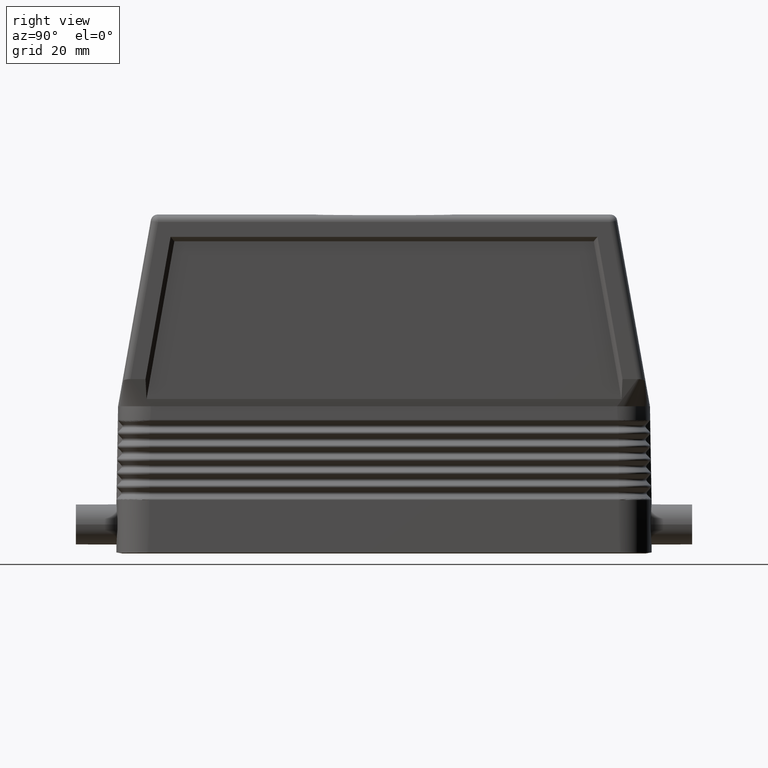
[diagram: clean part render]
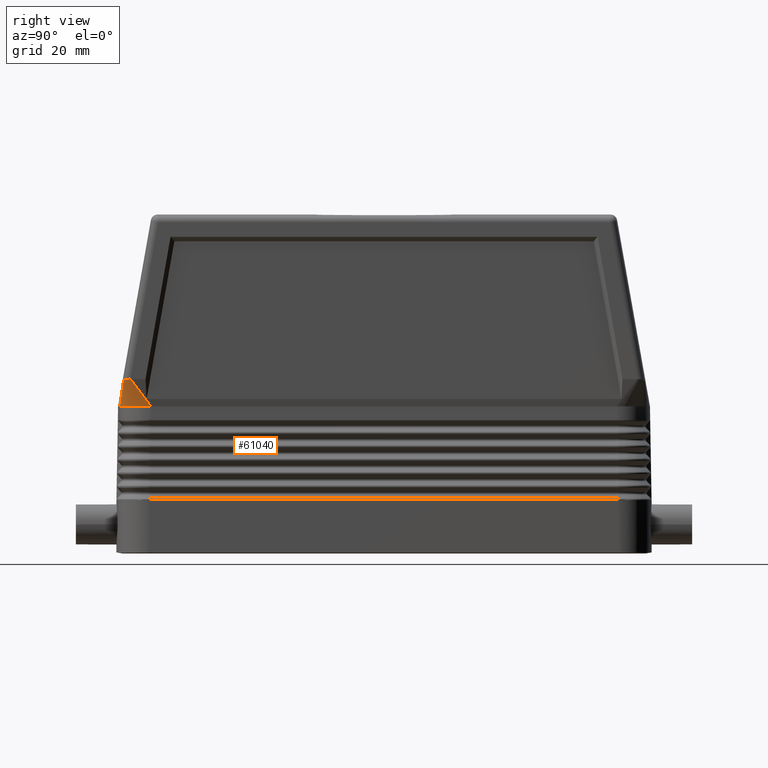
[diagram: same view with one face highlighted and labeled with its STEP entity id]
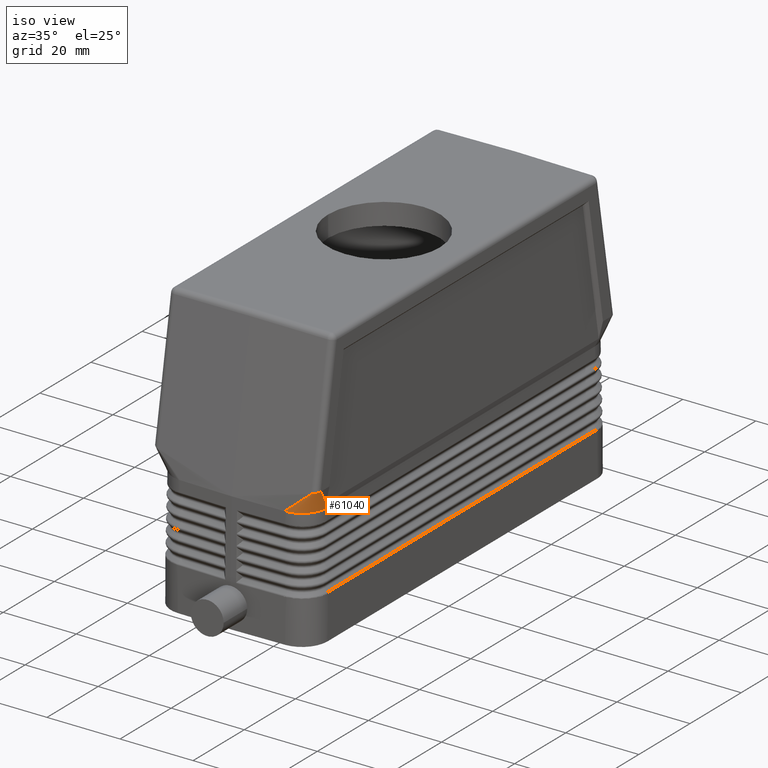
[diagram: same view with one face highlighted and labeled with its STEP entity id]
A machine part, right view. The second image highlights one B-rep face of the part: STEP entity #61040.
A second angle (iso view) of the same face is appended — the face is thin or edge-on in the first view.
In plain terms, the highlighted face is a freeform B-spline surface patch.
Its self-contained STEP definition (entity closure, byte-faithful):
#5660=CARTESIAN_POINT('',(409.900262758304,-28.8520722104411,
33.232629009636));
#5670=VERTEX_POINT('',#5660);
#6230=CARTESIAN_POINT('',(409.714891690159,-21.8534601219985,
33.232629009636));
#6240=DIRECTION('',(0.,0.,1.));
#6250=DIRECTION('',(0.716303372526395,-0.697788992824702,0.));
#6260=AXIS2_PLACEMENT_3D('',#6230,#6240,#6250);
#6270=ELLIPSE('',#6260,7.00207803343886,7.);
#6280=CARTESIAN_POINT('',(410.478839074744,-28.8128934100911,
33.232629009636));
#6290=VERTEX_POINT('',#6280);
#6300=EDGE_CURVE('',#5670,#6290,#6270,.T.);
#6320=CARTESIAN_POINT('',(416.715957986466,-21.8555374350302,
33.2326290096361));
#6330=VERTEX_POINT('',#6320);
#6340=EDGE_CURVE('',#6290,#6330,#6270,.T.);
#58530=CARTESIAN_POINT('',(409.900262758304,-28.8520722104411,
33.232629009636));
#58540=CARTESIAN_POINT('',(416.595604153207,-28.0350060476496,
38.9377402412396));
#58550=B_SPLINE_CURVE_WITH_KNOTS('',1,(#58530,#58540),.UNSPECIFIED.,.F.,
.F.,(2,2),(1.,6.94499600036342),.UNSPECIFIED.);
#58560=CARTESIAN_POINT('',(416.595604153207,-28.0350060476496,
38.9377402412399));
#58570=VERTEX_POINT('',#58560);
#58580=EDGE_CURVE('',#5670,#58570,#58550,.T.);
#59460=CARTESIAN_POINT('',(416.715957986466,-21.8555374350301,
33.232629009636));
#59470=CARTESIAN_POINT('',(418.082514349959,-26.4416725678366,
39.336156627677));
#59480=B_SPLINE_CURVE_WITH_KNOTS('',1,(#59460,#59470),.UNSPECIFIED.,.F.,
.F.,(2,2),(1.,6.94499600036342),.UNSPECIFIED.);
#59490=CARTESIAN_POINT('',(418.082514349959,-26.4416725678366,
39.3361566276771));
#59500=VERTEX_POINT('',#59490);
#59510=EDGE_CURVE('',#6330,#59500,#59480,.T.);
#59690=CARTESIAN_POINT('',(409.90025494965,-28.8520731633705,
33.2326223558689));
#59700=CARTESIAN_POINT('',(410.805560319792,-28.8283633034306,
33.2326222745268));
#59710=CARTESIAN_POINT('',(411.697637895332,-28.629233096965,
33.2326221947761));
#59720=CARTESIAN_POINT('',(412.531873940709,-28.2635784277251,
33.2326221240451));
#59730=CARTESIAN_POINT('',(412.536734368502,-28.2614414866798,
33.2326221236342));
#59740=CARTESIAN_POINT('',(412.725518057767,-28.1781829046532,
33.2326221077169));
#59750=CARTESIAN_POINT('',(412.923205945544,-28.0815340699752,
33.232622092791));
#59760=CARTESIAN_POINT('',(413.341986964652,-27.8476634801414,
33.2326220638431));
#59770=CARTESIAN_POINT('',(413.532425596572,-27.7268175427815,
33.2326220498558));
#59780=CARTESIAN_POINT('',(414.006887019487,-27.3983161420754,
33.2326220126631));
#59790=CARTESIAN_POINT('',(414.365711165005,-27.1139003053306,
33.2326219911466));
#59800=CARTESIAN_POINT('',(414.862312869799,-26.6041224104709,
33.2326219657045));
#59810=CARTESIAN_POINT('',(414.988386947919,-26.4637427084227,
33.2326219593206));
#59820=CARTESIAN_POINT('',(415.275329321974,-26.1171083415925,
33.2326219449927));
#59830=CARTESIAN_POINT('',(415.430621584105,-25.9064935507801,
33.2326219374691));
#59840=CARTESIAN_POINT('',(415.776799257419,-25.3774227035438,
33.2326219212617));
#59850=CARTESIAN_POINT('',(416.001762565177,-24.9797567241877,
33.2326219134179));
#59860=CARTESIAN_POINT('',(416.54024980092,-23.6581333789567,
33.2326218966575));
#59870=CARTESIAN_POINT('',(416.715956392677,-22.7611480301257,
33.2326218912031));
#59880=CARTESIAN_POINT('',(416.715956392677,-21.8555320863044,
33.2326218912031));
#59890=CARTESIAN_POINT('',(417.097914645381,-27.973706573558,
39.365759824056));
#59900=CARTESIAN_POINT('',(417.309814430227,-27.9597852335499,
39.4407371661843));
#59910=CARTESIAN_POINT('',(417.517231876746,-27.8853840438617,
39.5142475566613));
#59920=CARTESIAN_POINT('',(417.697961195356,-27.7577594396574,
39.5794441210372));
#59930=CARTESIAN_POINT('',(417.699010207976,-27.7570159601729,
39.5798229102165));
#59940=CARTESIAN_POINT('',(417.73960274513,-27.7281415877352,
39.5944946852924));
#59950=CARTESIAN_POINT('',(417.776116952423,-27.698279995694,
39.6082526723283));
#59960=CARTESIAN_POINT('',(417.844280116777,-27.6351987154402,
39.6349355118849));
#59970=CARTESIAN_POINT('',(417.878109428005,-27.6006060946613,
39.6478283544831));
#59980=CARTESIAN_POINT('',(417.970457317021,-27.4954261644383,
39.6821107910221));
#59990=CARTESIAN_POINT('',(418.017554344673,-27.424765935327,
39.7019436887721));
#60000=CARTESIAN_POINT('',(418.067818990986,-27.3283155075595,
39.725395029982));
#60010=CARTESIAN_POINT('',(418.080321305252,-27.3021881680281,
39.7312794277877));
#60020=CARTESIAN_POINT('',(418.108082139941,-27.2385931119722,
39.7444861997457));
#60030=CARTESIAN_POINT('',(418.122313183132,-27.2010433856452,
39.7514211695917));
#60040=CARTESIAN_POINT('',(418.152095399417,-27.1091968302451,
39.7663603506944));
#60050=CARTESIAN_POINT('',(418.162200770455,-27.0598214299508,
39.7735904167469));
#60060=CARTESIAN_POINT('',(418.179457517312,-26.9385929061246,
39.7890393238995));
#60070=CARTESIAN_POINT('',(418.185038711159,-26.8620336497563,
39.7940669538265));
#60080=CARTESIAN_POINT('',(418.185038711159,-26.7857422216252,
39.7940669538264));
#60090=B_SPLINE_SURFACE_WITH_KNOTS('',3,1,((#59690,#59890),(#59700,
#59900),(#59710,#59910),(#59720,#59920),(#59730,#59930),(#59740,#59940),
(#59750,#59950),(#59760,#59960),(#59770,#59970),(#59780,#59980),(#59790,
#59990),(#59800,#60000),(#59810,#60010),(#59820,#60020),(#59830,#60030),
(#59840,#60040),(#59850,#60050),(#59860,#60060),(#59870,#60070),(#59880,
#60080)),.UNSPECIFIED.,.F.,.F.,.F.,(4,2,2,2,2,2,2,2,2,4),(2,2),(0.,
3.81331004196677,3.83561227417694,4.67783221396416,5.54251648225474,
7.10620179287715,7.67122454835388,8.45633838454976,9.571183179988,
11.5068368225308),(0.999993066459616,7.39101266938558),.UNSPECIFIED.);
#60100=ORIENTED_EDGE('',*,*,#59510,.T.);
#60110=ORIENTED_EDGE('',*,*,#6340,.T.);
#60120=ORIENTED_EDGE('',*,*,#6300,.T.);
#60130=ORIENTED_EDGE('',*,*,#58580,.F.);
#60140=CARTESIAN_POINT('',(416.582514349959,-31.2207557592742,
12.232629009636));
#60150=DIRECTION('',(0.,0.17364817766693,0.984807753012208));
#60160=DIRECTION('',(0.,-0.984807753012208,0.17364817766693));
#60170=AXIS2_PLACEMENT_3D('',#60140,#60150,#60160);
#60180=CYLINDRICAL_SURFACE('',#60170,1.5);
#60190=CARTESIAN_POINT('',(418.082514349959,-26.4416725678366,
39.3361566276771));
#60200=CARTESIAN_POINT('',(418.082514349959,-26.4670059296482,
39.3361566276771));
#60210=CARTESIAN_POINT('',(418.081891564679,-26.492378889169,
39.3359892131085));
#60220=CARTESIAN_POINT('',(418.080646656502,-26.517745759732,
39.3356553443403));
#60230=CARTESIAN_POINT('',(418.079401750877,-26.5431125782918,
39.3353214762566));
#60240=CARTESIAN_POINT('',(418.077534717677,-26.5684729668416,
39.3348210901075));
#60250=CARTESIAN_POINT('',(418.075050777559,-26.5937799226522,
39.3341556089971));
#60260=CARTESIAN_POINT('',(418.072566839436,-26.6190868581305,
39.3334901284215));
#60270=CARTESIAN_POINT('',(418.069466021997,-26.6443400035072,
39.3326595387857));
#60280=CARTESIAN_POINT('',(418.065758258833,-26.6694922489418,
39.3316663536195));
#60290=CARTESIAN_POINT('',(418.062050493975,-26.6946445058662,
39.3306731679997));
#60300=CARTESIAN_POINT('',(418.057735840371,-26.7196955087048,
39.3295173949601));
#60310=CARTESIAN_POINT('',(418.052828823326,-26.7445992143043,
39.3282028081339));
#60320=CARTESIAN_POINT('',(418.047921797814,-26.7695029628781,
39.3268882190393));
#60330=CARTESIAN_POINT('',(418.042422491944,-26.7942590753236,
39.3254148373544));
#60340=CARTESIAN_POINT('',(418.036349650468,-26.8188236921833,
39.3237876542149));
#60350=CARTESIAN_POINT('',(418.030278216236,-26.8433826167475,
39.3221608481383));
#60360=CARTESIAN_POINT('',(418.023631967675,-26.867761871376,
39.3203799001924));
#60370=CARTESIAN_POINT('',(418.016404492778,-26.8919977664093,
39.3184431385141));
#60380=CARTESIAN_POINT('',(418.009178857279,-26.9162274933884,
39.3165068697432));
#60390=CARTESIAN_POINT('',(418.001379127829,-26.9402865347609,
39.3144167012897));
#60400=CARTESIAN_POINT('',(417.993022301566,-26.964133889426,
39.3121772739792));
#60410=CARTESIAN_POINT('',(417.984665473757,-26.9879812485037,
39.3099378462544));
#60420=CARTESIAN_POINT('',(417.975751648403,-27.0116166409925,
39.3075491900971));
#60430=CARTESIAN_POINT('',(417.966301551948,-27.0350006156569,
39.3050169346702));
#60440=CARTESIAN_POINT('',(417.947410612666,-27.0817456671666,
39.2999549034262));
#60450=CARTESIAN_POINT('',(417.926338795131,-27.1275769210499,
39.2943090483304));
#60460=CARTESIAN_POINT('',(417.903217661655,-27.1722704275549,
39.2881140700872));
#60470=CARTESIAN_POINT('',(417.880104428284,-27.2169486630354,
39.2819212085646));
#60480=CARTESIAN_POINT('',(417.854948297967,-27.2604838636384,
39.2751801457143));
#60490=CARTESIAN_POINT('',(417.827874519864,-27.3027107428501,
39.2679255774266));
#60500=CARTESIAN_POINT('',(417.814343845525,-27.3238144893908,
39.2642999585491));
#60510=CARTESIAN_POINT('',(417.80032275561,-27.3446095029246,
39.2605430245059));
#60520=CARTESIAN_POINT('',(417.785827045856,-27.3650717481877,
39.2566589975771));
#60530=CARTESIAN_POINT('',(417.771331865431,-27.3855332462465,
39.2527751124783));
#60540=CARTESIAN_POINT('',(417.756364307104,-27.4056585743148,
39.2487647297407));
#60550=CARTESIAN_POINT('',(417.74094923847,-27.425415850522,
39.2446344453534));
#60560=CARTESIAN_POINT('',(417.725534174139,-27.4451731212143,
39.240504162119));
#60570=CARTESIAN_POINT('',(417.709671744938,-27.4645621499707,
39.2362540130505));
#60580=CARTESIAN_POINT('',(417.693389570641,-27.4835530998997,
39.2318913384674));
#60590=CARTESIAN_POINT('',(417.67710738658,-27.5025440612176,
39.2275286612681));
#60600=CARTESIAN_POINT('',(417.660405615224,-27.5211367670194,
39.2230534994997));
#60610=CARTESIAN_POINT('',(417.643314110548,-27.5393040235693,
39.2184738323102));
#60620=CARTESIAN_POINT('',(417.609146461646,-27.5756222094207,
39.2093186137624));
#60630=CARTESIAN_POINT('',(417.573380080976,-27.6102874315957,
39.1997346719015));
#60640=CARTESIAN_POINT('',(417.536115138102,-27.6432125239693,
39.1897492277455));
#60650=CARTESIAN_POINT('',(417.498856083112,-27.6761324141589,
39.1797653612955));
#60660=CARTESIAN_POINT('',(417.460188182013,-27.7072364743614,
39.1694041457536));
#60670=CARTESIAN_POINT('',(417.420166721699,-27.7364845602976,
39.1586806460629));
#60680=CARTESIAN_POINT('',(417.38014352987,-27.7657339116426,
39.1479566824235));
#60690=CARTESIAN_POINT('',(417.338870960553,-27.793048817822,
39.1368980939829));
#60700=CARTESIAN_POINT('',(417.296453339797,-27.8183631143849,
39.1255319915503));
#60710=CARTESIAN_POINT('',(417.254019344482,-27.8436871830769,
39.1141615014381));
#60720=CARTESIAN_POINT('',(417.210487596779,-27.8669790749726,
39.1024969571072));
#60730=CARTESIAN_POINT('',(417.165991285838,-27.8881592156108,
39.0905744646243));
#60740=CARTESIAN_POINT('',(417.143721862466,-27.8987594094018,
39.0846075197891));
#60750=CARTESIAN_POINT('',(417.121168687385,-27.9088502687429,
39.0785646349077));
#60760=CARTESIAN_POINT('',(417.09836445261,-27.91840827574,
39.072454493847));
#60770=CARTESIAN_POINT('',(417.075560277264,-27.9279662578283,
39.0663443687098));
#60780=CARTESIAN_POINT('',(417.052505253128,-27.9369912771204,
39.0601670405124));
#60790=CARTESIAN_POINT('',(417.029235009558,-27.9454622910137,
39.0539319684244));
#60800=CARTESIAN_POINT('',(417.005964804386,-27.953933290929,
39.0476969066248));
#60810=CARTESIAN_POINT('',(416.982479607122,-27.9618501892998,
39.0414041590909));
#60820=CARTESIAN_POINT('',(416.958817301471,-27.969194993188,
39.0350638235038));
#60830=CARTESIAN_POINT('',(416.935155013365,-27.9765397916303,
39.0287234926178));
#60840=CARTESIAN_POINT('',(416.911315855953,-27.9833124159386,
39.0223356357325));
#60850=CARTESIAN_POINT('',(416.887339241594,-27.9894983315853,
39.0159108304906));
#60860=CARTESIAN_POINT('',(416.863362623578,-27.9956842481757,
39.0094860242686));
#60870=CARTESIAN_POINT('',(416.839248794689,-28.0012833947769,
39.003024334658));
#60880=CARTESIAN_POINT('',(416.815037927138,-28.0062849437539,
38.9965366360116));
#60890=CARTESIAN_POINT('',(416.790827033789,-28.0112864980601,
38.9900489304524));
#60900=CARTESIAN_POINT('',(416.766519349613,-28.0156904131093,
38.9835352837871));
#60910=CARTESIAN_POINT('',(416.742154994425,-28.0194896566295,
38.9770066480436));
#60920=CARTESIAN_POINT('',(416.717790589489,-28.0232889079073,
38.9704779989695));
#60930=CARTESIAN_POINT('',(416.693369755263,-28.0264834646444,
38.9639344431402));
#60940=CARTESIAN_POINT('',(416.668931721104,-28.0290700244556,
38.9573866747692));
#60950=CARTESIAN_POINT('',(416.644493599066,-28.031656593568,
38.9508388828526));
#60960=CARTESIAN_POINT('',(416.620038432628,-28.0336350850467,
38.9442873866782));
#60970=CARTESIAN_POINT('',(416.595604153207,-28.0350060476496,
38.9377402412396));
#60980=B_SPLINE_CURVE_WITH_KNOTS('',3,(#60190,#60200,#60210,#60220,
#60230,#60240,#60250,#60260,#60270,#60280,#60290,#60300,#60310,#60320,
#60330,#60340,#60350,#60360,#60370,#60380,#60390,#60400,#60410,#60420,
#60430,#60440,#60450,#60460,#60470,#60480,#60490,#60500,#60510,#60520,
#60530,#60540,#60550,#60560,#60570,#60580,#60590,#60600,#60610,#60620,
#60630,#60640,#60650,#60660,#60670,#60680,#60690,#60700,#60710,#60720,
#60730,#60740,#60750,#60760,#60770,#60780,#60790,#60800,#60810,#60820,
#60830,#60840,#60850,#60860,#60870,#60880,#60890,#60900,#60910,#60920,
#60930,#60940,#60950,#60960,#60970),.UNSPECIFIED.,.F.,.F.,(4,3,3,3,3,3,3
,3,3,3,3,3,3,3,3,3,3,3,3,3,3,3,3,3,3,3,4),(0.,0.0761059390889696,
0.15236859638378,0.228697659199311,0.304995922764775,0.381163543217061,
0.457202808813853,0.533299764891657,0.609381849752485,0.761453662888175,
0.913493008280104,0.989551384767686,1.06571614150184,1.14190861933452,
1.21804521759464,1.37013086375313,1.52220058897041,1.67426686180673,
1.82635292427913,1.90262720302791,1.97914479106415,2.05581927044547,
2.13256080246243,2.20927928750607,2.28588743471367,2.36230391043548,
2.43845673175046),.UNSPECIFIED.);
#60990=SURFACE_CURVE('',#60980,(#60180,#60090),.CURVE_3D.);
#61000=EDGE_CURVE('',#59500,#58570,#60990,.T.);
#61010=ORIENTED_EDGE('',*,*,#61000,.T.);
#61020=EDGE_LOOP('',(#61010,#60130,#60120,#60110,#60100));
#61030=FACE_OUTER_BOUND('',#61020,.T.);
#61040=ADVANCED_FACE('',(#61030),#60090,.T.);